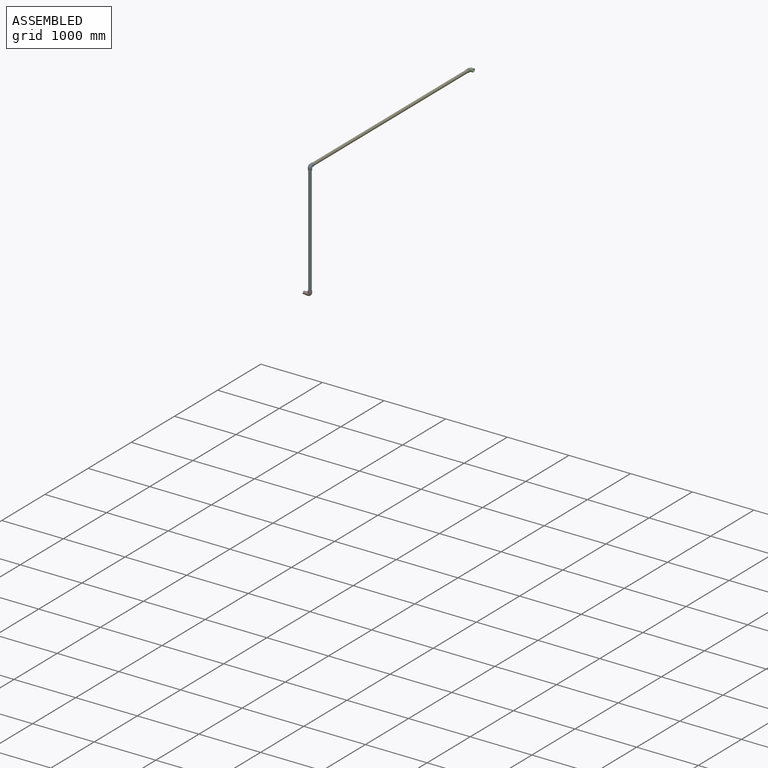
[diagram: assembled view]
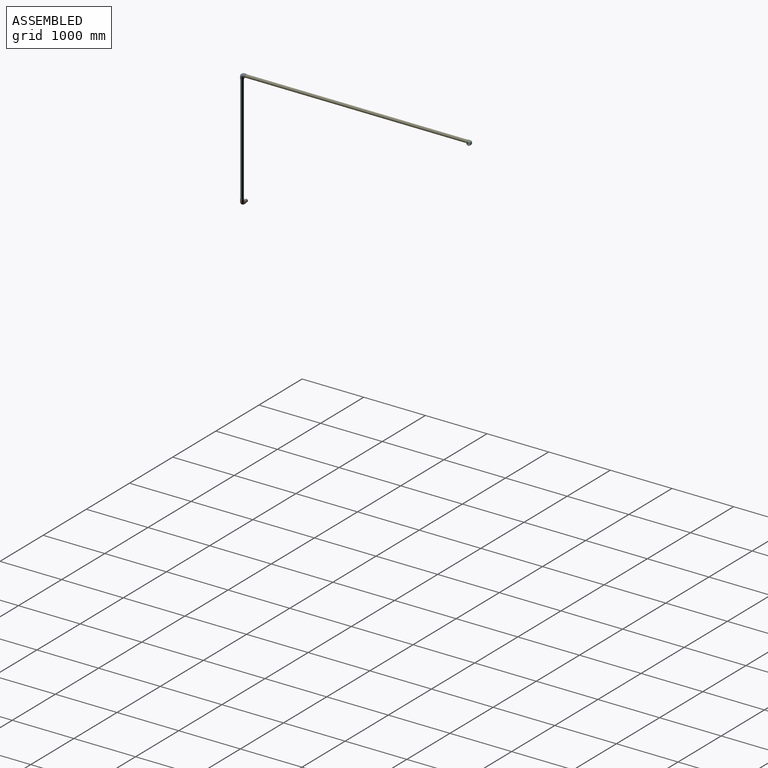
[diagram: assembled view, second angle]
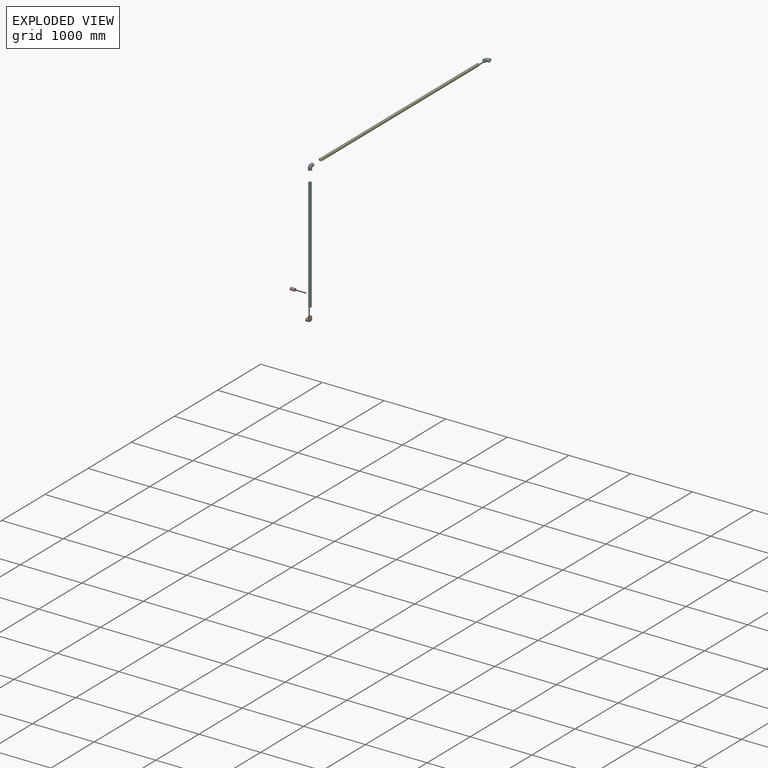
[diagram: exploded view]
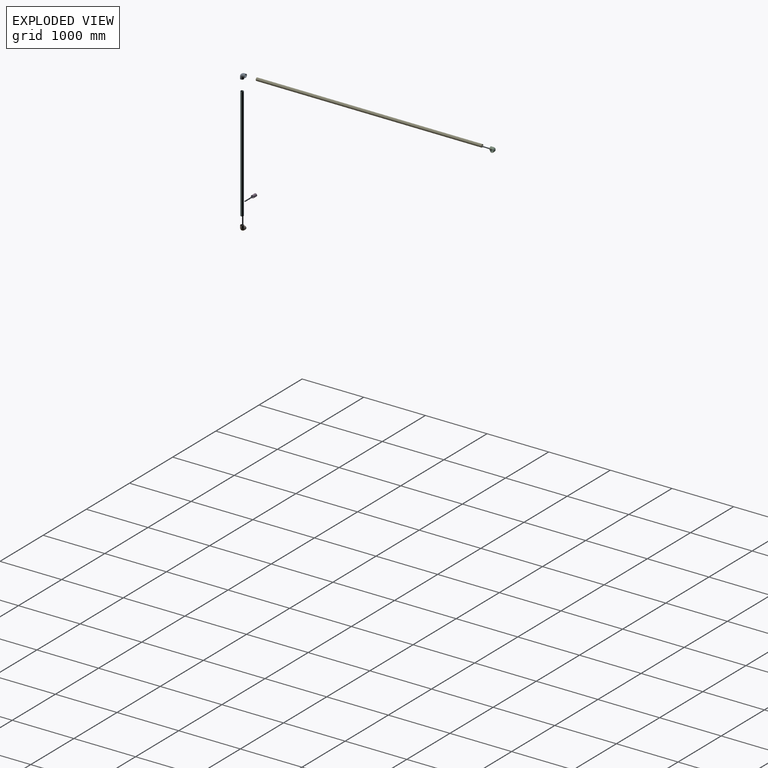
[diagram: exploded view, second angle]
ASSEMBLY  parts=6 mates=5
PART A: 10 faces, bbox 86.4x56.6x86.4 mm
  f0: torus R=25.4mm, axis (0,1,0), area 5125.8mm2, adj f7,f8
  f1: cone r=24.28mm half-angle=0.4deg, axis (0,0,1), area 4956.4mm2, adj f7,f9
  f2: cylinder r=28.32mm len=56.64mm, axis (0,0,-1), area 5757.6mm2, adj f3,f6,f9
  f3: cylinder r=28.32mm len=56.64mm, axis (-1,0,0), area 5757.6mm2, adj f2,f5,f6
  f4: cone r=24.05mm half-angle=0.4deg, axis (-1,0,0), area 4956.4mm2, adj f5,f8
  f5: plane 56.64x56.64mm, normal (-1,0,0), area 667.4mm2, adj f3,f4
  f6: torus R=25.4mm, axis (0,1,0), area 7178.8mm2, adj f2,f3
  f7: plane 48.11x48.11mm, normal (0,0,1), area 504.2mm2, adj f0,f1
  f8: plane 48.11x48.11mm, normal (-1,0,0), area 504.2mm2, adj f0,f4
  f9: plane 56.64x56.64mm, normal (0,0,1), area 667.4mm2, adj f1,f2
PART B: same geometry as A
PART C: same geometry as A
PART D: 4 faces, bbox 48.3x76.2x48.3 mm
  f0: cylinder r=22.29mm len=76.2mm, axis (0,1,0), area 10671.3mm2, adj f2,f3
  f1: cylinder r=24.13mm len=76.2mm, axis (0,1,0), area 11552.9mm2, adj f2,f3
  f2: plane 48.26x48.26mm, normal (0,-1,0), area 268.5mm2, adj f0,f1
  f3: plane 48.26x48.26mm, normal (0,1,0), area 268.5mm2, adj f0,f1
PART E: 4 faces, bbox 48.3x3657.6x48.3 mm
  f0: cylinder r=20.45mm len=3657.6mm, axis (0,1,0), area 469900.2mm2, adj f2,f3
  f1: cylinder r=24.13mm len=3657.6mm, axis (0,1,0), area 554540.7mm2, adj f2,f3
  f2: plane 48.26x48.26mm, normal (0,-1,0), area 515.8mm2, adj f0,f1
  f3: plane 48.26x48.26mm, normal (0,1,0), area 515.8mm2, adj f0,f1
PART F: 4 faces, bbox 48.3x1828.8x48.3 mm
  f0: cylinder r=20.45mm len=1828.8mm, axis (0,1,0), area 234950.1mm2, adj f2,f3
  f1: cylinder r=24.13mm len=1828.8mm, axis (0,1,0), area 277270.3mm2, adj f2,f3
  f2: plane 48.26x48.26mm, normal (0,-1,0), area 515.8mm2, adj f0,f1
  f3: plane 48.26x48.26mm, normal (0,1,0), area 515.8mm2, adj f0,f1
PLACE A rot(axis=(0.71,-0.71,0),180deg) t=(101.6,0,1879.6)mm
PLACE B rot(axis=(-0.71,0,0.71),180deg) t=(101.6,0,0)mm
PLACE C rot(axis=(0,-0.71,0.71),180deg) t=(101.6,3708.4,1879.6)mm
PLACE D rot(axis=(0,0,1),90deg) t=(0,0,0)mm
PLACE E t=(101.6,3683,1879.6)mm
PLACE F rot(axis=(-0.58,-0.58,0.58),120deg) t=(101.6,0,25.4)mm
MATE fastened E.f1 <-> A.f3  axis (0,-1,0) through (101.6,25.4,1879.6)mm
MATE fastened A.f1 <-> F.f1  axis (0,0,-1) through (101.6,0,1854.2)mm
MATE fastened B.f1 <-> D.f1  axis (-1,0,0) through (76.2,0,0)mm
MATE fastened F.f1 <-> B.f3  axis (0,0,-1) through (101.6,0,25.4)mm
MATE fastened C.f1 <-> E.f0  axis (0,-1,0) through (101.6,3683,1879.6)mm
